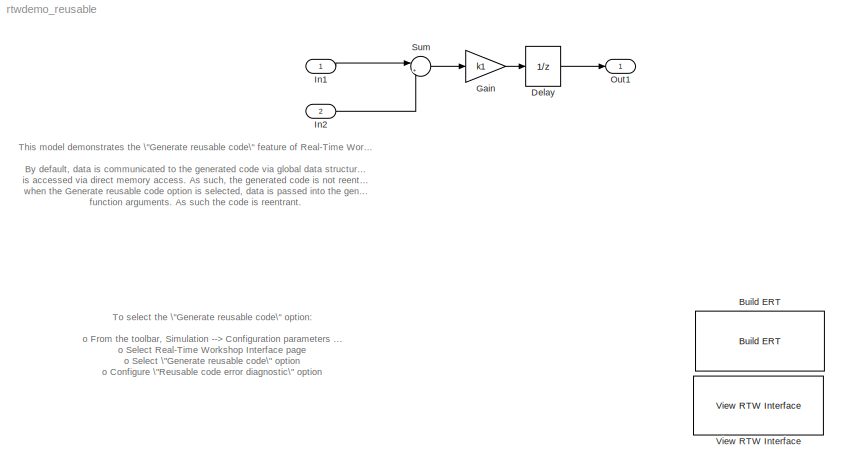
MODEL rtwdemo_reusable
KIND model
CONFIG PostLoadFcn = rtwdemo_reusable_data
BLOCK [Reference] Build ERT  REF=rtwdemowidgets/Build ERT
  Ports = []
  ShowPortLabels = on
  SourceBlock = rtwdemowidgets/Build ERT
  attrib_overrides = {'MultiInstanceERTCode', 'RootIOFormat'}
BLOCK [UnitDelay] Delay
BLOCK [Gain] Gain
  Gain = k1
BLOCK [Inport] In1
  IconDisplay = Port number
  LatchInput = off
  Port = 1
  SampleTime = 1
BLOCK [Inport] In2
  IconDisplay = Port number
  LatchInput = off
  Port = 2
  SampleTime = 1
BLOCK [Outport] Out1
  BusOutputAsStruct = off
  IconDisplay = Port number
BLOCK [Sum] Sum
  IconShape = round
  Inputs = |++
  Ports = [2, 1]
BLOCK [Reference] View RTW Interface  REF=rtwdemowidgets/View RTW Interface
  Ports = []
  ShowPortLabels = on
  SourceBlock = rtwdemowidgets/View RTW Interface
ANNOTATION (root): This model demonstrates the \"Generate reusable code\" feature of Real-Time Workshop Embedded Coder.\n\nBy default, data is communicated to the generated code via global data structures, whereby data\nis accessed via direct memory access. As such, the generated code is not reentrant. However,\nwhen the Generate reusable code option is selected, data is passed into the generated code via\nfunction ...<+123ch>
ANNOTATION (root): To select the \"Generate reusable code\" option:\n\no From the toolbar, Simulation --> Configuration parameters ...\no Select Real-Time Workshop Interface page\no Select \"Generate reusable code\" option\no Configure \"Reusable code error diagnostic\" option\no Configure \"Pass root-level I/O as\" option
LINE Delay:1 -> Out1:1
LINE Gain:1 -> Delay:1
LINE In1:1 -> Sum:1
LINE In2:1 -> Sum:2
LINE Sum:1 -> Gain:1
